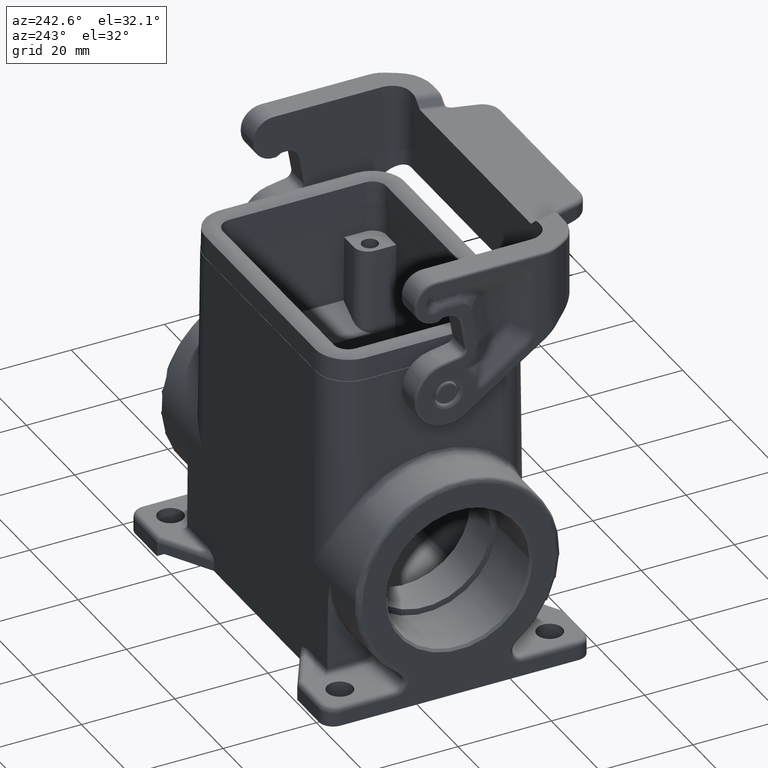
[diagram: clean part render]
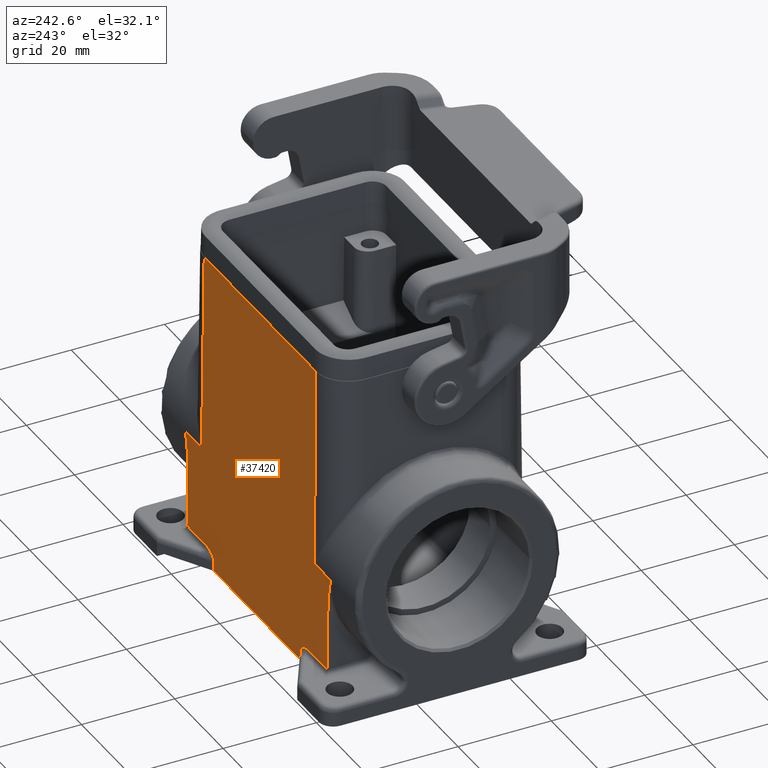
[diagram: same view with one face highlighted and labeled with its STEP entity id]
A machine part, auxiliary view. The second image highlights one B-rep face of the part: STEP entity #37420.
In plain terms, the highlighted planar face has unit normal (-0, 1, 0.0087).
Its self-contained STEP definition (entity closure, byte-faithful):
#2330=CARTESIAN_POINT('',(11.3170000001164,55.1242424613328,
45.3091120766616));
#2340=VERTEX_POINT('',#2330);
#2370=CARTESIAN_POINT('',(11.7129397181771,54.7283027432721,
-0.0610857484886175));
#2380=DIRECTION('',(-0.00872620324394422,0.00872620324394422,
0.99992385047757));
#2390=VECTOR('',#2380,1.);
#2400=LINE('',#2370,#2390);
#2410=CARTESIAN_POINT('',(11.3153341464466,55.1259083150026,45.5));
#2420=VERTEX_POINT('',#2410);
#2430=EDGE_CURVE('',#2340,#2420,#2400,.T.);
#4810=CARTESIAN_POINT('',(11.6905894614492,54.750653,2.50000000000001));
#4820=VERTEX_POINT('',#4810);
#4850=EDGE_CURVE('',#4820,#2340,#2400,.T.);
#11420=CARTESIAN_POINT('',(52.5565576325146,55.3222628402947,68.));
#11430=VERTEX_POINT('',#11420);
#11660=CARTESIAN_POINT('',(52.5867883893237,55.3397165758762,70.));
#11670=VERTEX_POINT('',#11660);
#11700=CARTESIAN_POINT('',(51.5287119010066,54.7288358305231,
6.70234936209111E-15));
#11710=DIRECTION('',(-0.0151130766097477,-0.00872553884892117,
-0.999847718348741));
#11720=VECTOR('',#11710,1.);
#11730=LINE('',#11700,#11720);
#11740=EDGE_CURVE('',#11670,#11430,#11730,.T.);
#11960=CARTESIAN_POINT('',(63.690856,55.1826182516936,51.9983150943402))
;
#11970=VERTEX_POINT('',#11960);
#12050=CARTESIAN_POINT('',(63.690856,55.3048091047132,66.));
#12060=VERTEX_POINT('',#12050);
#12090=CARTESIAN_POINT('',(63.690856,54.7288358305231,
6.70234936209111E-15));
#12100=DIRECTION('',(0.,0.00872653549837381,0.999961923064171));
#12110=VECTOR('',#12100,1.);
#12120=LINE('',#12090,#12110);
#12130=EDGE_CURVE('',#11970,#12060,#12120,.T.);
#30470=CARTESIAN_POINT('',(5.690856,54.7288358305231,0.));
#30480=DIRECTION('',(0.,0.00872653549837393,0.999961923064171));
#30490=VECTOR('',#30480,1.);
#30500=LINE('',#30470,#30490);
#30510=CARTESIAN_POINT('',(5.690856,55.1826182516936,51.9983150943402));
#30520=VERTEX_POINT('',#30510);
#30530=CARTESIAN_POINT('',(5.690856,55.3048091047132,66.));
#30540=VERTEX_POINT('',#30530);
#30550=EDGE_CURVE('',#30520,#30540,#30500,.T.);
#34760=CARTESIAN_POINT('',(4.690856,33.250653,45.5));
#34770=DIRECTION('',(-1.,0.,0.));
#34780=DIRECTION('',(0.,1.,0.));
#34790=AXIS2_PLACEMENT_3D('',#34760,#34770,#34780);
#34800=TOROIDAL_SURFACE('',#34790,22.8744223723098,1.);
#34940=CARTESIAN_POINT('',(4.7316627591484,55.1259083150026,
45.5000000000002));
#34950=VERTEX_POINT('',#34940);
#34980=CARTESIAN_POINT('',(4.690856,54.7288366612541,9.51923395717258E-5
));
#34990=DIRECTION('',(0.,0.999961923064171,-0.00872653549837393));
#35000=DIRECTION('',(1.,0.,0.));
#35010=AXIS2_PLACEMENT_3D('',#34980,#34990,#35000);
#35020=PLANE('',#35010);
#35030=CARTESIAN_POINT('',(4.7316627591484,55.1259083150026,
45.5000000000002));
#35040=CARTESIAN_POINT('',(4.78893140225156,55.1282472108947,
45.7680109230697));
#35050=CARTESIAN_POINT('',(4.84605953224329,55.1305867571601,
46.0360963715306));
#35060=CARTESIAN_POINT('',(4.90239620252821,55.1329277943546,
46.3043526635578));
#35070=CARTESIAN_POINT('',(4.95873287255833,55.1352688315386,
46.5726089543718));
#35080=CARTESIAN_POINT('',(5.01427969166012,55.1376113573206,
46.8410358215757));
#35090=CARTESIAN_POINT('',(5.0683574678741,55.1399562746174,
47.1097367292884));
#35100=CARTESIAN_POINT('',(5.09539636654624,55.141128733724,
47.2440872356407));
#35110=CARTESIAN_POINT('',(5.12206744096928,55.1423017927649,
47.3785064875693));
#35120=CARTESIAN_POINT('',(5.14828103715262,55.1434755751246,
47.5130086237106));
#35130=CARTESIAN_POINT('',(5.1744946330251,55.1446493574704,
47.6475107582569));
#35140=CARTESIAN_POINT('',(5.20025084130764,55.1458238634311,
47.7820958108305));
#35150=CARTESIAN_POINT('',(5.22545542174146,55.1469992243425,
47.9167788310781));
#35160=CARTESIAN_POINT('',(5.2506600001352,55.1481745851587,
48.0514618404243));
#35170=CARTESIAN_POINT('',(5.27531306636208,55.1493508014706,
48.1862428799641));
#35180=CARTESIAN_POINT('',(5.29931438759027,55.1505280124667,
48.3211378989257));
#35190=CARTESIAN_POINT('',(5.32331570407562,55.1517052232302,
48.4560328912311));
#35200=CARTESIAN_POINT('',(5.34666542512037,55.1528834295794,
48.5910419664329));
#35210=CARTESIAN_POINT('',(5.36925554478901,55.1540627772649,
48.7261818257467));
#35220=CARTESIAN_POINT('',(5.39184585105204,55.1552421346918,
48.8613228013158));
#35230=CARTESIAN_POINT('',(5.41367407889511,55.156422470042,
48.9965758357051));
#35240=CARTESIAN_POINT('',(5.43463931046491,55.1576049446992,
49.1320740104849));
#35250=CARTESIAN_POINT('',(5.45560299069217,55.1587873318581,
49.2675621589465));
#35260=CARTESIAN_POINT('',(5.47569561621399,55.1599714249297,
49.4032457857527));
#35270=CARTESIAN_POINT('',(5.49477771862846,55.1611569542437,
49.5390939895276));
#35280=CARTESIAN_POINT('',(5.51385983121003,55.1623424841893,
49.6749422656835));
#35290=CARTESIAN_POINT('',(5.53193170849195,55.16352945207,
49.8109553128808));
#35300=CARTESIAN_POINT('',(5.54884033616458,55.1647176258577,
49.9471065433291));
#35310=CARTESIAN_POINT('',(5.5657489709836,55.1659058001475,
50.0832578313214));
#35320=CARTESIAN_POINT('',(5.5814947807123,55.167095183706,
50.2195476877735));
#35330=CARTESIAN_POINT('',(5.59590646768889,55.1682855835662,
50.3559540008631));
#35340=CARTESIAN_POINT('',(5.61031815422103,55.1694759833896,
50.492360309746));
#35350=CARTESIAN_POINT('',(5.62339634037818,55.1706674055659,
50.6288837686599));
#35360=CARTESIAN_POINT('',(5.63494444048,55.1718596877963,
50.7655057800176));
#35370=CARTESIAN_POINT('',(5.64649252880873,55.1730519688112,
50.9021276520917));
#35380=CARTESIAN_POINT('',(5.65651144746089,55.1742451203687,
51.0388492784643));
#35390=CARTESIAN_POINT('',(5.66476894681449,55.1754389866518,
51.1756528042713));
#35400=CARTESIAN_POINT('',(5.66889769869443,55.1760359201118,
51.2440546036748));
#35410=CARTESIAN_POINT('',(5.67258547689046,55.1766330335715,
51.3124770283302));
#35420=CARTESIAN_POINT('',(5.67579873448858,55.1772303057597,
51.3809176421417));
#35430=CARTESIAN_POINT('',(5.67901199078068,55.1778275777052,
51.4493582281358));
#35440=CARTESIAN_POINT('',(5.68175077882635,55.1784250091023,
51.5178170861302));
#35450=CARTESIAN_POINT('',(5.68397771343497,55.1790225740506,
51.5862912469215));
#35460=CARTESIAN_POINT('',(5.686204688467,55.179620149846,
51.6547666506588));
#35470=CARTESIAN_POINT('',(5.68792003894103,55.1802175192091,
51.7232183993831));
#35480=CARTESIAN_POINT('',(5.68908381080287,55.1808170358353,
51.7919162003046));
#35490=CARTESIAN_POINT('',(5.69024722066393,55.1814163659769,
51.8605926322124));
#35500=CARTESIAN_POINT('',(5.690856,55.1820169503739,51.9294127877978));
#35510=CARTESIAN_POINT('',(5.690856,55.1826182516936,51.9983150943402));
#35520=B_SPLINE_CURVE_WITH_KNOTS('',3,(#35030,#35040,#35050,#35060,
#35070,#35080,#35090,#35100,#35110,#35120,#35130,#35140,#35150,#35160,
#35170,#35180,#35190,#35200,#35210,#35220,#35230,#35240,#35250,#35260,
#35270,#35280,#35290,#35300,#35310,#35320,#35330,#35340,#35350,#35360,
#35370,#35380,#35390,#35400,#35410,#35420,#35430,#35440,#35450,#35460,
#35470,#35480,#35490,#35500,#35510),.UNSPECIFIED.,.F.,.F.,(4,3,3,3,3,3,3
,3,3,3,3,3,3,3,3,3,4),(0.,0.822303523129442,1.64464165890179,
2.0557729168009,2.46686836815278,2.877934025281,3.28898922991113,
3.70013168507424,4.11158916286953,4.52318763353115,4.93475648436216,
5.34618762101657,5.75744306175256,5.96301336202489,6.16855935664757,
6.37425760337613,6.58067443208543),.UNSPECIFIED.);
#35530=SURFACE_CURVE('',#35520,(#34800,#35020),.CURVE_3D.);
#35540=EDGE_CURVE('',#34950,#30520,#35530,.T.);
#35670=CARTESIAN_POINT('',(4.690856,55.3048091047132,66.));
#35680=DIRECTION('',(0.,0.999961923064171,-0.00872653549837393));
#35690=DIRECTION('',(0.,-0.00872653549837393,-0.999961923064171));
#35700=AXIS2_PLACEMENT_3D('',#35670,#35680,#35690);
#35710=ELLIPSE('',#35700,1.00003807838574,1.);
#35720=CARTESIAN_POINT('',(5.69081792306417,55.3048852600348,
66.0087265354984));
#35730=VERTEX_POINT('',#35720);
#35740=EDGE_CURVE('',#35730,#30540,#35710,.T.);
#35750=ORIENTED_EDGE('',*,*,#35740,.F.);
#35760=ORIENTED_EDGE('',*,*,#30550,.T.);
#35770=ORIENTED_EDGE('',*,*,#35540,.T.);
#35780=CARTESIAN_POINT('',(0.,55.1259083150026,45.5));
#35790=DIRECTION('',(1.,0.,0.));
#35800=VECTOR('',#35790,1.);
#35810=LINE('',#35780,#35800);
#35820=EDGE_CURVE('',#34950,#2420,#35810,.T.);
#35830=ORIENTED_EDGE('',*,*,#35820,.F.);
#35840=ORIENTED_EDGE('',*,*,#2430,.T.);
#35850=ORIENTED_EDGE('',*,*,#4850,.T.);
#35860=CARTESIAN_POINT('',(0.,54.750653,2.50000000000001));
#35870=DIRECTION('',(-1.,0.,0.));
#35880=VECTOR('',#35870,1.);
#35890=LINE('',#35860,#35880);
#35900=CARTESIAN_POINT('',(57.6911225385508,54.750653,2.50000000000001))
;
#35910=VERTEX_POINT('',#35900);
#35920=EDGE_CURVE('',#35910,#4820,#35890,.T.);
#35930=ORIENTED_EDGE('',*,*,#35920,.T.);
#35940=CARTESIAN_POINT('',(57.668772281823,54.7283027432721,
-0.0610857484886108));
#35950=DIRECTION('',(0.00872620324394422,0.00872620324394409,
0.99992385047757));
#35960=VECTOR('',#35950,1.);
#35970=LINE('',#35940,#35960);
#35980=CARTESIAN_POINT('',(58.0647119998836,55.1242424613328,
45.3091120766616));
#35990=VERTEX_POINT('',#35980);
#36000=EDGE_CURVE('',#35910,#35990,#35970,.T.);
#36010=ORIENTED_EDGE('',*,*,#36000,.F.);
#36020=CARTESIAN_POINT('',(58.0663778535534,55.1259083150026,45.5));
#36030=VERTEX_POINT('',#36020);
#36040=EDGE_CURVE('',#35990,#36030,#35970,.T.);
#36050=ORIENTED_EDGE('',*,*,#36040,.F.);
#36060=CARTESIAN_POINT('',(69.381712,55.1259083150026,45.5));
#36070=DIRECTION('',(-1.,0.,0.));
#36080=VECTOR('',#36070,1.);
#36090=LINE('',#36060,#36080);
#36100=CARTESIAN_POINT('',(64.6500492408516,55.1259083150026,
45.5000000000002));
#36110=VERTEX_POINT('',#36100);
#36120=EDGE_CURVE('',#36110,#36030,#36090,.T.);
#36130=ORIENTED_EDGE('',*,*,#36120,.T.);
#36140=CARTESIAN_POINT('',(64.690856,33.250653,45.5));
#36150=DIRECTION('',(-1.,0.,0.));
#36160=DIRECTION('',(0.,1.,0.));
#36170=AXIS2_PLACEMENT_3D('',#36140,#36150,#36160);
#36180=TOROIDAL_SURFACE('',#36170,22.8744223723098,1.);
#36190=CARTESIAN_POINT('',(64.690856,54.7288366612541,
9.51923395784281E-5));
#36200=DIRECTION('',(0.,-0.999961923064171,0.00872653549837381));
#36210=DIRECTION('',(-1.,0.,0.));
#36220=AXIS2_PLACEMENT_3D('',#36190,#36200,#36210);
#36230=PLANE('',#36220);
#36240=CARTESIAN_POINT('',(64.6500492408516,55.1259083150026,
45.5000000000002));
#36250=CARTESIAN_POINT('',(64.5927805977485,55.1282472108947,
45.7680109230697));
#36260=CARTESIAN_POINT('',(64.5356524677567,55.1305867571601,
46.0360963715306));
#36270=CARTESIAN_POINT('',(64.4793157974718,55.1329277943546,
46.3043526635579));
#36280=CARTESIAN_POINT('',(64.4229791274417,55.1352688315386,
46.5726089543718));
#36290=CARTESIAN_POINT('',(64.3674323083399,55.1376113573206,
46.8410358215757));
#36300=CARTESIAN_POINT('',(64.3133545321259,55.1399562746174,
47.1097367292884));
#36310=CARTESIAN_POINT('',(64.2863156334548,55.141128733724,
47.2440872356357));
#36320=CARTESIAN_POINT('',(64.2596445590317,55.1423017927649,
47.3785064875644));
#36330=CARTESIAN_POINT('',(64.2334309628474,55.1434755751246,
47.5130086237106));
#36340=CARTESIAN_POINT('',(64.2072173669749,55.1446493574704,
47.647510758257));
#36350=CARTESIAN_POINT('',(64.1814611586924,55.1458238634311,
47.7820958108305));
#36360=CARTESIAN_POINT('',(64.1562565782586,55.1469992243424,
47.9167788310781));
#36370=CARTESIAN_POINT('',(64.1310519998666,55.1481745851586,
48.0514618404148));
#36380=CARTESIAN_POINT('',(64.1063989336396,55.1493508014705,
48.1862428799548));
#36390=CARTESIAN_POINT('',(64.0823976124098,55.1505280124667,
48.3211378989257));
#36400=CARTESIAN_POINT('',(64.0583962959244,55.1517052232302,
48.4560328912311));
#36410=CARTESIAN_POINT('',(64.0350465748796,55.1528834295794,
48.591041966433));
#36420=CARTESIAN_POINT('',(64.012456455211,55.1540627772649,
48.7261818257467));
#36430=CARTESIAN_POINT('',(63.989866148948,55.1552421346918,
48.8613228013158));
#36440=CARTESIAN_POINT('',(63.9680379211049,55.156422470042,
48.996575835705));
#36450=CARTESIAN_POINT('',(63.9470726895351,55.1576049446992,
49.1320740104849));
#36460=CARTESIAN_POINT('',(63.9261090093079,55.1587873318581,
49.2675621589464));
#36470=CARTESIAN_POINT('',(63.906016383786,55.1599714249297,
49.4032457857527));
#36480=CARTESIAN_POINT('',(63.8869342813716,55.1611569542437,
49.5390939895276));
#36490=CARTESIAN_POINT('',(63.86785216879,55.1623424841893,
49.6749422656835));
#36500=CARTESIAN_POINT('',(63.8497802915081,55.16352945207,
49.8109553128808));
#36510=CARTESIAN_POINT('',(63.8328716638354,55.1647176258577,
49.9471065433291));
#36520=CARTESIAN_POINT('',(63.8159630290164,55.1659058001475,
50.0832578313214));
#36530=CARTESIAN_POINT('',(63.8002172192877,55.167095183706,
50.2195476877735));
#36540=CARTESIAN_POINT('',(63.7858055323111,55.1682855835662,
50.3559540008631));
#36550=CARTESIAN_POINT('',(63.771393845779,55.1694759833896,
50.4923603097459));
#36560=CARTESIAN_POINT('',(63.7583156596218,55.1706674055659,
50.6288837686599));
#36570=CARTESIAN_POINT('',(63.74676755952,55.1718596877963,
50.7655057800177));
#36580=CARTESIAN_POINT('',(63.7352194711913,55.1730519688112,
50.9021276520917));
#36590=CARTESIAN_POINT('',(63.7252005525391,55.1742451203687,
51.0388492784643));
#36600=CARTESIAN_POINT('',(63.7169430531855,55.1754389866517,
51.1756528042713));
#36610=CARTESIAN_POINT('',(63.7128143013056,55.1760359201118,
51.2440546036748));
#36620=CARTESIAN_POINT('',(63.7091265231096,55.1766330335714,
51.3124770283302));
#36630=CARTESIAN_POINT('',(63.7059132655114,55.1772303057597,
51.3809176421417));
#36640=CARTESIAN_POINT('',(63.7027000092193,55.1778275777052,
51.4493582281358));
#36650=CARTESIAN_POINT('',(63.6999612211737,55.1784250091023,
51.5178170861302));
#36660=CARTESIAN_POINT('',(63.6977342865651,55.1790225740506,
51.5862912469215));
#36670=CARTESIAN_POINT('',(63.6955073115339,55.1796201498457,
51.6547666506315));
#36680=CARTESIAN_POINT('',(63.6937919610594,55.1802175192089,
51.7232183993559));
#36690=CARTESIAN_POINT('',(63.6926281891972,55.1808170358353,
51.7919162003046));
#36700=CARTESIAN_POINT('',(63.6914647793361,55.1814163659769,
51.8605926322124));
#36710=CARTESIAN_POINT('',(63.690856,55.1820169503739,51.9294127877979))
;
#36720=CARTESIAN_POINT('',(63.690856,55.1826182516936,51.9983150943402))
;
#36730=B_SPLINE_CURVE_WITH_KNOTS('',3,(#36240,#36250,#36260,#36270,
#36280,#36290,#36300,#36310,#36320,#36330,#36340,#36350,#36360,#36370,
#36380,#36390,#36400,#36410,#36420,#36430,#36440,#36450,#36460,#36470,
#36480,#36490,#36500,#36510,#36520,#36530,#36540,#36550,#36560,#36570,
#36580,#36590,#36600,#36610,#36620,#36630,#36640,#36650,#36660,#36670,
#36680,#36690,#36700,#36710,#36720),.UNSPECIFIED.,.F.,.F.,(4,3,3,3,3,3,3
,3,3,3,3,3,3,3,3,3,4),(0.,0.822303523117303,1.64464165888871,
2.05577291678888,2.46686836814112,2.87793402526974,3.28898922990053,
3.70013168506406,4.11158916285913,4.52318763352042,4.9347564843514,
5.34618762100582,5.75744306174175,5.96301336201383,6.16855935663629,
6.37425760336492,6.58067443207424),.UNSPECIFIED.);
#36740=SURFACE_CURVE('',#36730,(#36180,#36230),.CURVE_3D.);
#36750=EDGE_CURVE('',#36110,#11970,#36740,.T.);
#36760=ORIENTED_EDGE('',*,*,#36750,.F.);
#36770=ORIENTED_EDGE('',*,*,#12130,.F.);
#36780=CARTESIAN_POINT('',(64.690856,55.3048091047132,66.));
#36790=DIRECTION('',(0.,-0.999961923064171,0.00872653549837381));
#36800=DIRECTION('',(0.,-0.00872653549837381,-0.999961923064171));
#36810=AXIS2_PLACEMENT_3D('',#36780,#36790,#36800);
#36820=ELLIPSE('',#36810,1.00003807838574,1.);
#36830=CARTESIAN_POINT('',(63.6908940769359,55.3048852600348,
66.0087265354984));
#36840=VERTEX_POINT('',#36830);
#36850=EDGE_CURVE('',#36840,#12060,#36820,.T.);
#36860=ORIENTED_EDGE('',*,*,#36850,.T.);
#36870=CARTESIAN_POINT('',(69.381712,55.3048852600348,66.0087265354984))
;
#36880=DIRECTION('',(-1.,0.,0.));
#36890=VECTOR('',#36880,1.);
#36900=LINE('',#36870,#36890);
#36910=CARTESIAN_POINT('',(56.2584436369732,55.3048852600348,
66.0087265354984));
#36920=VERTEX_POINT('',#36910);
#36930=EDGE_CURVE('',#36840,#36920,#36900,.T.);
#36940=ORIENTED_EDGE('',*,*,#36930,.F.);
#36950=CARTESIAN_POINT('',(52.5565576325146,55.3222628402947,68.));
#36960=CARTESIAN_POINT('',(52.5477388774965,55.3171713297111,
67.4165706751003));
#36970=CARTESIAN_POINT('',(52.9744444394293,55.3126775115441,
66.9016301172229));
#36980=CARTESIAN_POINT('',(53.6977710073304,55.3089916906357,
66.479276875334));
#36990=CARTESIAN_POINT('',(54.5788152702094,55.3063241718558,
66.1736094984422));
#37000=CARTESIAN_POINT('',(55.4786739170864,55.3048852600347,
66.0087265354984));
#37010=CARTESIAN_POINT('',(56.2584436369732,55.3048852600347,
66.0087265354984));
#37020=B_SPLINE_CURVE_WITH_KNOTS('',6,(#36950,#36960,#36970,#36980,
#36990,#37000,#37010),.UNSPECIFIED.,.F.,.F.,(7,7),(0.,1.),.UNSPECIFIED.)
;
#37030=EDGE_CURVE('',#11430,#36920,#37020,.T.);
#37040=ORIENTED_EDGE('',*,*,#37030,.T.);
#37050=ORIENTED_EDGE('',*,*,#11740,.T.);
#37060=CARTESIAN_POINT('',(0.,55.3397165758762,70.));
#37070=DIRECTION('',(1.,0.,0.));
#37080=VECTOR('',#37070,1.);
#37090=LINE('',#37060,#37080);
#37100=CARTESIAN_POINT('',(16.7949236106763,55.3397165758762,70.));
#37110=VERTEX_POINT('',#37100);
#37120=EDGE_CURVE('',#37110,#11670,#37090,.T.);
#37130=ORIENTED_EDGE('',*,*,#37120,.T.);
#37140=CARTESIAN_POINT('',(17.8530000989935,54.7288358305231,0.));
#37150=DIRECTION('',(0.0151130766097477,-0.0087255388489213,
-0.999847718348741));
#37160=VECTOR('',#37150,1.);
#37170=LINE('',#37140,#37160);
#37180=CARTESIAN_POINT('',(16.8251543674854,55.3222628402947,68.));
#37190=VERTEX_POINT('',#37180);
#37200=EDGE_CURVE('',#37110,#37190,#37170,.T.);
#37210=ORIENTED_EDGE('',*,*,#37200,.F.);
#37220=CARTESIAN_POINT('',(16.8251543674854,55.3222628402947,68.));
#37230=CARTESIAN_POINT('',(16.8339731225035,55.3171713297111,
67.4165706751003));
#37240=CARTESIAN_POINT('',(16.4072675605707,55.3126775115441,
66.9016301172229));
#37250=CARTESIAN_POINT('',(15.6839409926696,55.3089916906357,
66.479276875334));
#37260=CARTESIAN_POINT('',(14.8028967297906,55.3063241718558,
66.1736094984422));
#37270=CARTESIAN_POINT('',(13.9030380829136,55.3048852600347,
66.0087265354984));
#37280=CARTESIAN_POINT('',(13.1232683630268,55.3048852600347,
66.0087265354984));
#37290=B_SPLINE_CURVE_WITH_KNOTS('',6,(#37220,#37230,#37240,#37250,
#37260,#37270,#37280),.UNSPECIFIED.,.F.,.F.,(7,7),(0.,1.),.UNSPECIFIED.)
;
#37300=CARTESIAN_POINT('',(13.1232683630268,55.3048852600348,
66.0087265354984));
#37310=VERTEX_POINT('',#37300);
#37320=EDGE_CURVE('',#37190,#37310,#37290,.T.);
#37330=ORIENTED_EDGE('',*,*,#37320,.F.);
#37340=CARTESIAN_POINT('',(0.,55.3048852600348,66.0087265354984));
#37350=DIRECTION('',(1.,0.,0.));
#37360=VECTOR('',#37350,1.);
#37370=LINE('',#37340,#37360);
#37380=EDGE_CURVE('',#35730,#37310,#37370,.T.);
#37390=ORIENTED_EDGE('',*,*,#37380,.T.);
#37400=EDGE_LOOP('',(#37390,#37330,#37210,#37130,#37050,#37040,#36940,
#36860,#36770,#36760,#36130,#36050,#36010,#35930,#35850,#35840,#35830,
#35770,#35760,#35750));
#37410=FACE_OUTER_BOUND('',#37400,.T.);
#37420=ADVANCED_FACE('',(#37410),#35020,.T.);